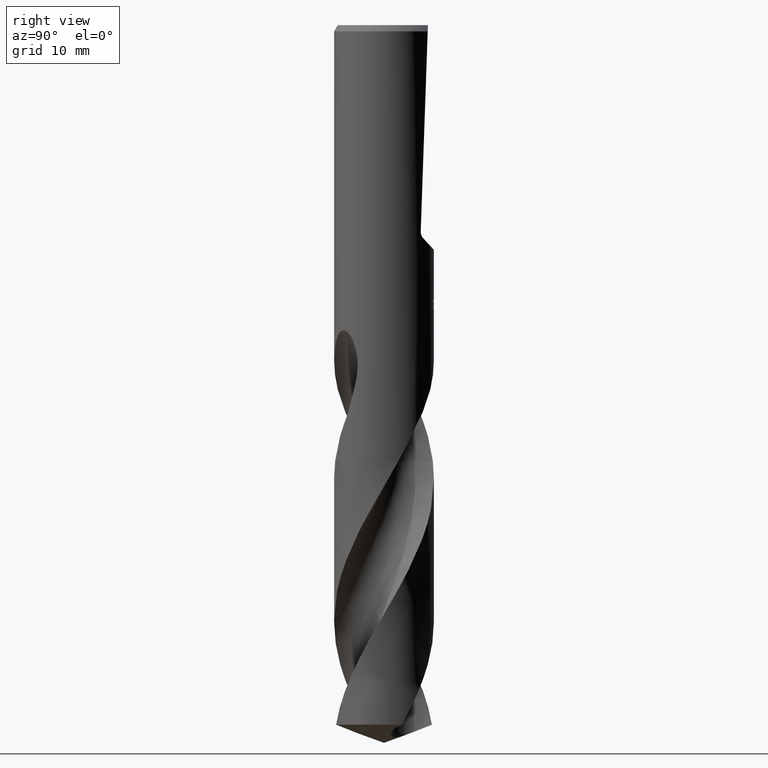
[diagram: clean part render]
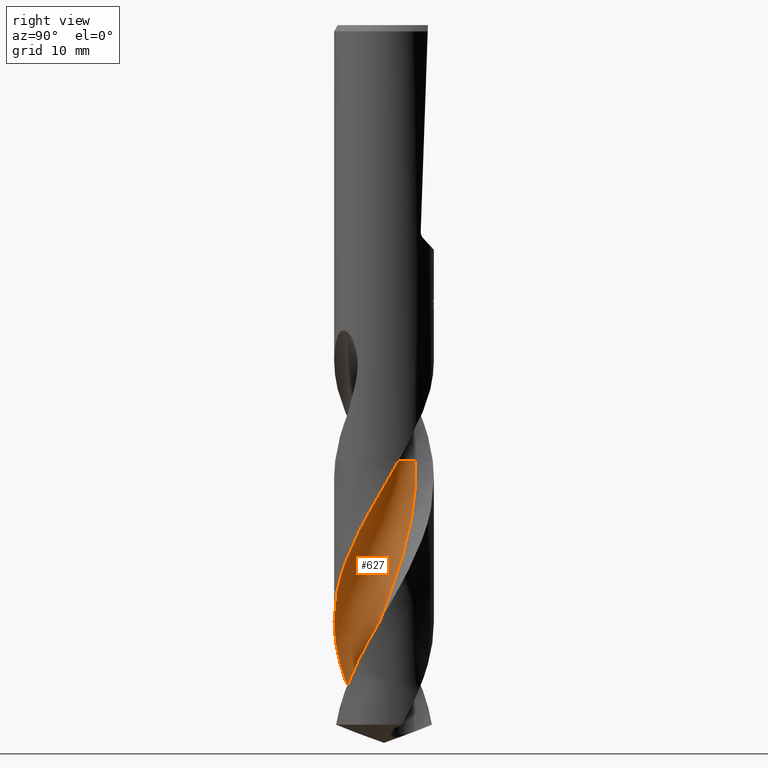
[diagram: same view with one face highlighted and labeled with its STEP entity id]
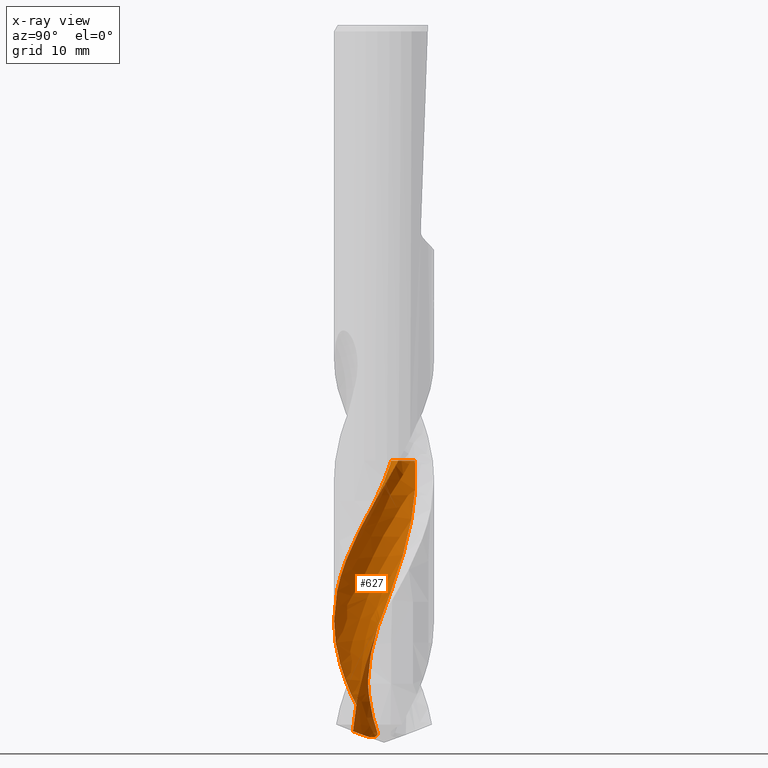
[diagram: x-ray of the same camera — body ghosted, the highlighted face saturated]
A machine part, right view. The second image highlights one B-rep face of the part: STEP entity #627.
The next image is the same camera in x-ray: the body ghosted, the highlighted face saturated — about 0% of this face is hidden behind the body in this view.
In plain terms, the highlighted face is a freeform B-spline surface patch.
Its self-contained STEP definition (entity closure, byte-faithful):
#331=EDGE_CURVE('',#589,#501,#853,.T.);
#335=EDGE_CURVE('',#435,#481,#857,.T.);
#345=EDGE_CURVE('',#607,#435,#868,.T.);
#391=EDGE_CURVE('',#737,#589,#919,.T.);
#435=VERTEX_POINT('',#968);
#481=VERTEX_POINT('',#1018);
#501=VERTEX_POINT('',#1040);
#589=VERTEX_POINT('',#1132);
#607=VERTEX_POINT('',#1154);
#627=ADVANCED_FACE('',(#1175),#1176,.F.);
#639=EDGE_CURVE('',#481,#737,#1188,.T.);
#679=EDGE_CURVE('',#501,#607,#1230,.T.);
#737=VERTEX_POINT('',#1295);
#853=B_SPLINE_CURVE_WITH_KNOTS('',3,(#1998,#1999,#2000,#2001,#2002,#2003,#2004,#2005,#2006,#2007,#2008,#2009,#2010,#2011,#2012,#2013,#2014,#2015,#2016,#2017),.UNSPECIFIED.,.F.,.F.,(4,2,2,2,2,2,2,2,2,4),(0.0,3.10660166933481,5.23401258999662,9.0092338906768,13.5346876422414,18.5787250776118,24.2399292953121,30.5895545735939,35.7181251945758,40.8645523747182),.UNSPECIFIED.);
#857=B_SPLINE_CURVE_WITH_KNOTS('',3,(#2024,#2025,#2026,#2027,#2028,#2029,#2030,#2031,#2032,#2033,#2034,#2035,#2036,#2037,#2038,#2039,#2040,#2041,#2042,#2043),.UNSPECIFIED.,.F.,.F.,(4,2,2,2,2,2,2,2,2,4),(-16.8006218485099,-15.6891768468068,-14.5775007599719,-12.4929966616332,-10.408755172207,-8.32572176035212,-6.24413518085139,-4.16337960795178,-2.08233106861258,-0.0),.UNSPECIFIED.);
#868=B_SPLINE_CURVE_WITH_KNOTS('',3,(#2572,#2573,#2574,#2575,#2576,#2577,#2578,#2579,#2580,#2581,#2582,#2583,#2584,#2585,#2586,#2587,#2588,#2589,#2590,#2591,#2592,#2593,#2594,#2595,#2596,#2597,#2598,#2599,#2600,#2601,#2602,#2603,#2604,#2605,#2606,#2607,#2608,#2609,#2610,#2611,#2612,#2613,#2614,#2615,#2616,#2617,#2618,#2619,#2620,#2621,#2622,#2623,#2624,#2625,#2626,#2627),.UNSPECIFIED.,.F.,.F.,(4,2,2,2,2,2,2,2,2,2,2,2,2,2,2,2,2,2,2,2,2,2,2,2,2,2,2,4),(0.0,4.03119795669945,4.51299357255904,6.34891494524884,7.56997665190257,8.74032055705247,10.6537355196986,12.565384926144,14.4796819760202,16.3922550224049,18.3074110693983,20.2208270257919,22.1368428162549,24.051102981974,25.7679083140063,27.2053389357836,27.3963258987203,30.3747466968977,31.5355284934032,34.7145068317606,35.1598579370838,38.6213664978809,38.9451433668071,41.2884921942798,43.2137067925742,46.1087079763762,47.5535394222418,48.9951844506906),.UNSPECIFIED.);
#919=B_SPLINE_CURVE_WITH_KNOTS('',3,(#3015,#3016,#3017,#3018,#3019,#3020,#3021,#3022,#3023,#3024,#3025,#3026,#3027,#3028,#3029,#3030,#3031,#3032,#3033,#3034),.UNSPECIFIED.,.F.,.F.,(4,2,2,2,2,2,2,2,2,4),(0.0,3.10660166933481,5.23401258999662,9.0092338906768,13.5346876422414,18.5787250776118,24.2399292953121,30.5895545735939,35.7181251945758,40.8645523747182),.UNSPECIFIED.);
#968=CARTESIAN_POINT('',(7.65315511599825,2.32972465532846,-69.805));
#1018=CARTESIAN_POINT('',(-0.841475625402543,4.95653405970587,-69.805));
#1040=CARTESIAN_POINT('',(-7.46189764271834,-2.88445550660683,-112.08823812587));
#1132=CARTESIAN_POINT('',(-4.91052471311144E-012,-3.49123471205399,-113.729294483975));
#1154=CARTESIAN_POINT('',(-1.84829471421194E-011,-7.99996084194976,-95.5289885932846));
#1175=FACE_OUTER_BOUND('',#4758,.T.);
#1176=B_SPLINE_SURFACE_WITH_KNOTS('',3,3,((#4759,#4760,#4761,#4762,#4763,#4764,#4765,#4766,#4767,#4768,#4769,#4770,#4771,#4772,#4773,#4774,#4775,#4776,#4777,#4778,#4779,#4780,#4781,#4782,#4783,#4784,#4785,#4786,#4787,#4788,#4789,#4790,#4791,#4792,#4793,#4794,#4795,#4796,#4797,#4798,#4799,#4800,#4801),(#4802,#4803,#4804,#4805,#4806,#4807,#4808,#4809,#4810,#4811,#4812,#4813,#4814,#4815,#4816,#4817,#4818,#4819,#4820,#4821,#4822,#4823,#4824,#4825,#4826,#4827,#4828,#4829,#4830,#4831,#4832,#4833,#4834,#4835,#4836,#4837,#4838,#4839,#4840,#4841,#4842,#4843,#4844),(#4845,#4846,#4847,#4848,#4849,#4850,#4851,#4852,#4853,#4854,#4855,#4856,#4857,#4858,#4859,#4860,#4861,#4862,#4863,#4864,#4865,#4866,#4867,#4868,#4869,#4870,#4871,#4872,#4873,#4874,#4875,#4876,#4877,#4878,#4879,#4880,#4881,#4882,#4883,#4884,#4885,#4886,#4887),(#4888,#4889,#4890,#4891,#4892,#4893,#4894,#4895,#4896,#4897,#4898,#4899,#4900,#4901,#4902,#4903,#4904,#4905,#4906,#4907,#4908,#4909,#4910,#4911,#4912,#4913,#4914,#4915,#4916,#4917,#4918,#4919,#4920,#4921,#4922,#4923,#4924,#4925,#4926,#4927,#4928,#4929,#4930),(#4931,#4932,#4933,#4934,#4935,#4936,#4937,#4938,#4939,#4940,#4941,#4942,#4943,#4944,#4945,#4946,#4947,#4948,#4949,#4950,#4951,#4952,#4953,#4954,#4955,#4956,#4957,#4958,#4959,#4960,#4961,#4962,#4963,#4964,#4965,#4966,#4967,#4968,#4969,#4970,#4971,#4972,#4973),(#4974,#4975,#4976,#4977,#4978,#4979,#4980,#4981,#4982,#4983,#4984,#4985,#4986,#4987,#4988,#4989,#4990,#4991,#4992,#4993,#4994,#4995,#4996,#4997,#4998,#4999,#5000,#5001,#5002,#5003,#5004,#5005,#5006,#5007,#5008,#5009,#5010,#5011,#5012,#5013,#5014,#5015,#5016),(#5017,#5018,#5019,#5020,#5021,#5022,#5023,#5024,#5025,#5026,#5027,#5028,#5029,#5030,#5031,#5032,#5033,#5034,#5035,#5036,#5037,#5038,#5039,#5040,#5041,#5042,#5043,#5044,#5045,#5046,#5047,#5048,#5049,#5050,#5051,#5052,#5053,#5054,#5055,#5056,#5057,#5058,#5059),(#5060,#5061,#5062,#5063,#5064,#5065,#5066,#5067,#5068,#5069,#5070,#5071,#5072,#5073,#5074,#5075,#5076,#5077,#5078,#5079,#5080,#5081,#5082,#5083,#5084,#5085,#5086,#5087,#5088,#5089,#5090,#5091,#5092,#5093,#5094,#5095,#5096,#5097,#5098,#5099,#5100,#5101,#5102),(#5103,#5104,#5105,#5106,#5107,#5108,#5109,#5110,#5111,#5112,#5113,#5114,#5115,#5116,#5117,#5118,#5119,#5120,#5121,#5122,#5123,#5124,#5125,#5126,#5127,#5128,#5129,#5130,#5131,#5132,#5133,#5134,#5135,#5136,#5137,#5138,#5139,#5140,#5141,#5142,#5143,#5144,#5145),(#5146,#5147,#5148,#5149,#5150,#5151,#5152,#5153,#5154,#5155,#5156,#5157,#5158,#5159,#5160,#5161,#5162,#5163,#5164,#5165,#5166,#5167,#5168,#5169,#5170,#5171,#5172,#5173,#5174,#5175,#5176,#5177,#5178,#5179,#5180,#5181,#5182,#5183,#5184,#5185,#5186,#5187,#5188),(#5189,#5190,#5191,#5192,#5193,#5194,#5195,#5196,#5197,#5198,#5199,#5200,#5201,#5202,#5203,#5204,#5205,#5206,#5207,#5208,#5209,#5210,#5211,#5212,#5213,#5214,#5215,#5216,#5217,#5218,#5219,#5220,#5221,#5222,#5223,#5224,#5225,#5226,#5227,#5228,#5229,#5230,#5231),(#5232,#5233,#5234,#5235,#5236,#5237,#5238,#5239,#5240,#5241,#5242,#5243,#5244,#5245,#5246,#5247,#5248,#5249,#5250,#5251,#5252,#5253,#5254,#5255,#5256,#5257,#5258,#5259,#5260,#5261,#5262,#5263,#5264,#5265,#5266,#5267,#5268,#5269,#5270,#5271,#5272,#5273,#5274)),.UNSPECIFIED.,.F.,.F.,.F.,(4,1,1,1,1,1,1,1,1,4),(4,1,2,2,2,2,2,2,1,2,2,2,2,2,2,2,2,2,2,2,1,2,4),(-8.28795270144725E-017,0.392700612629877,0.785401225259755,1.17810183788963,1.57080245051951,1.96350306314939,2.35620367577927,2.74890428840914,2.94525459472408,3.14160490103902),(0.0,1.06461880689697,2.12923761379393,3.1938564206909,4.25847522758786,6.38771284138179,8.51695045517572,10.6461880689697,12.7754256827636,17.0339009103514,21.2923761379393,25.5508513655272,29.809326593115,34.0678018207029,38.3262770482907,42.5847522758786,46.8432275034665,51.1017027310543,55.3601779586422,59.61865318623,63.8771284138179,66.0063660276118,68.1356036414058),.UNSPECIFIED.);
#1188=B_SPLINE_CURVE_WITH_KNOTS('',3,(#5321,#5322,#5323,#5324,#5325,#5326,#5327,#5328,#5329,#5330,#5331,#5332,#5333,#5334,#5335,#5336,#5337,#5338,#5339,#5340,#5341,#5342,#5343,#5344,#5345,#5346,#5347,#5348,#5349,#5350,#5351,#5352,#5353,#5354,#5355,#5356,#5357,#5358,#5359,#5360,#5361,#5362,#5363),.UNSPECIFIED.,.F.,.F.,(4,1,2,2,2,2,2,2,1,2,2,2,2,2,2,2,2,2,2,2,1,2,4),(0.0,1.06461880689697,2.12923761379393,3.1938564206909,4.25847522758786,6.38771284138179,8.51695045517572,10.6461880689697,12.7754256827636,17.0339009103514,21.2923761379393,25.5508513655272,29.809326593115,34.0678018207029,38.3262770482907,42.5847522758786,46.8432275034665,51.1017027310543,55.3601779586422,59.61865318623,63.8771284138179,66.0063660276118,68.1356036414058),.UNSPECIFIED.);
#1230=B_SPLINE_CURVE_WITH_KNOTS('',3,(#6208,#6209,#6210,#6211,#6212,#6213,#6214,#6215,#6216,#6217,#6218,#6219,#6220,#6221,#6222,#6223,#6224,#6225,#6226,#6227,#6228,#6229,#6230,#6231,#6232,#6233,#6234,#6235,#6236,#6237,#6238,#6239,#6240,#6241,#6242,#6243,#6244,#6245,#6246,#6247,#6248,#6249,#6250,#6251,#6252,#6253,#6254,#6255,#6256,#6257,#6258,#6259,#6260,#6261,#6262,#6263),.UNSPECIFIED.,.F.,.F.,(4,2,2,2,2,2,2,2,2,2,2,2,2,2,2,2,2,2,2,2,2,2,2,2,2,2,2,4),(0.0,4.03119795669945,4.51299357255904,6.34891494524884,7.56997665190257,8.74032055705247,10.6537355196986,12.565384926144,14.4796819760202,16.3922550224049,18.3074110693983,20.2208270257919,22.1368428162549,24.051102981974,25.7679083140063,27.2053389357836,27.3963258987203,30.3747466968977,31.5355284934032,34.7145068317606,35.1598579370838,38.6213664978809,38.9451433668071,41.2884921942798,43.2137067925742,46.1087079763762,47.5535394222418,48.9951844506906),.UNSPECIFIED.);
#1295=CARTESIAN_POINT('',(0.825038306277627,-4.97440358064605,-113.164731597398));
#1998=CARTESIAN_POINT('',(0.825038306277662,-4.97440358064608,-113.164731597397));
#1999=CARTESIAN_POINT('',(0.440626944497056,-4.07694231063672,-113.509871584427));
#2000=CARTESIAN_POINT('',(-0.0746486985126373,-3.32622438483217,-113.80901020564));
#2001=CARTESIAN_POINT('',(-0.91253496896245,-2.37413871410064,-114.086476468191));
#2002=CARTESIAN_POINT('',(-1.20434277084123,-2.11559901321438,-114.120591945678));
#2003=CARTESIAN_POINT('',(-1.85246920763955,-1.60473510227128,-114.128868277285));
#2004=CARTESIAN_POINT('',(-2.23985214635884,-1.39937400932708,-114.043748659915));
#2005=CARTESIAN_POINT('',(-2.99476093472012,-1.10997032831084,-113.843495316419));
#2006=CARTESIAN_POINT('',(-3.44789368439573,-1.01742803554826,-113.692332245756));
#2007=CARTESIAN_POINT('',(-4.47342693781129,-1.01485631325954,-113.331172163292));
#2008=CARTESIAN_POINT('',(-5.00603202690627,-1.12671338614488,-113.132630800216));
#2009=CARTESIAN_POINT('',(-6.06696898776075,-1.5699938745803,-112.719330355811));
#2010=CARTESIAN_POINT('',(-6.57537029545926,-1.92150404091262,-112.508699229573));
#2011=CARTESIAN_POINT('',(-7.49453740160647,-2.85000521359035,-112.083819214458));
#2012=CARTESIAN_POINT('',(-7.87813866452546,-3.44085379402433,-111.875507192723));
#2013=CARTESIAN_POINT('',(-8.36196246965981,-4.61368932377585,-111.526597516189));
#2014=CARTESIAN_POINT('',(-8.50060066920612,-5.17075105449681,-111.382142884531));
#2015=CARTESIAN_POINT('',(-8.61994225635063,-6.31235429461685,-111.11464188788));
#2016=CARTESIAN_POINT('',(-8.59976036843323,-6.89357539839502,-110.992479224835));
#2017=CARTESIAN_POINT('',(-8.50124090999428,-7.46517936758652,-110.882146867205));
#2024=CARTESIAN_POINT('',(9.39233894850022,7.95332282328231,-69.805));
#2025=CARTESIAN_POINT('',(9.49633133630432,7.59773263600544,-69.805));
#2026=CARTESIAN_POINT('',(9.56297128593662,7.23226830406791,-69.805));
#2027=CARTESIAN_POINT('',(9.61942180315498,6.4933741679835,-69.805));
#2028=CARTESIAN_POINT('',(9.60906318138873,6.12194916139148,-69.805));
#2029=CARTESIAN_POINT('',(9.46886348016406,5.06580902083189,-69.805));
#2030=CARTESIAN_POINT('',(9.24373334193173,4.40143939276862,-69.805));
#2031=CARTESIAN_POINT('',(8.55158594253464,3.19647821825825,-69.805));
#2032=CARTESIAN_POINT('',(8.09118955640732,2.6673443296014,-69.8049999999999));
#2033=CARTESIAN_POINT('',(6.9938543347265,1.8155927625739,-69.8049999999999));
#2034=CARTESIAN_POINT('',(6.36746832348659,1.50096779724697,-69.8049999999999));
#2035=CARTESIAN_POINT('',(5.02983355214911,1.12966679582518,-69.8049999999999));
#2036=CARTESIAN_POINT('',(4.3314161568764,1.07635873670161,-69.805));
#2037=CARTESIAN_POINT('',(2.95371535771352,1.24044596582258,-69.805));
#2038=CARTESIAN_POINT('',(2.2876229726052,1.45616302551092,-69.805));
#2039=CARTESIAN_POINT('',(1.07549981824463,2.13086570424722,-69.805));
#2040=CARTESIAN_POINT('',(0.541124224806998,2.58340787365952,-69.805));
#2041=CARTESIAN_POINT('',(-0.324376359980613,3.66823185740127,-69.805));
#2042=CARTESIAN_POINT('',(-0.647065506952312,4.29020539272982,-69.805));
#2043=CARTESIAN_POINT('',(-0.841475625402548,4.95653405970586,-69.805));
#2572=CARTESIAN_POINT('',(-7.46189764271835,-2.88445550660687,-112.08823812587));
#2573=CARTESIAN_POINT('',(-7.21896311327611,-3.51290361214624,-110.925631901164));
#2574=CARTESIAN_POINT('',(-6.89756041767349,-4.10825165133282,-109.776820304439));
#2575=CARTESIAN_POINT('',(-6.45843966180348,-4.72174837793792,-108.475036247845));
#2576=CARTESIAN_POINT('',(-6.4106272746368,-4.7864593899422,-108.336017700302));
#2577=CARTESIAN_POINT('',(-6.17588158542647,-5.09434748666043,-107.667734778212));
#2578=CARTESIAN_POINT('',(-5.9758686957932,-5.32759565897808,-107.13974170298));
#2579=CARTESIAN_POINT('',(-5.62088244810474,-5.69624864215581,-106.259013052689));
#2580=CARTESIAN_POINT('',(-5.47356635495763,-5.83794000683341,-105.907549817054));
#2581=CARTESIAN_POINT('',(-5.17490696924406,-6.10396521238654,-105.218351767182));
#2582=CARTESIAN_POINT('',(-5.02407998200319,-6.22869716733373,-104.880579401974));
#2583=CARTESIAN_POINT('',(-4.61479868893351,-6.54261082121215,-103.991815856934));
#2584=CARTESIAN_POINT('',(-4.3492884190017,-6.72205066937711,-103.44180688368));
#2585=CARTESIAN_POINT('',(-3.79818429179472,-7.04810897214457,-102.339773617794));
#2586=CARTESIAN_POINT('',(-3.51340321163909,-7.19428478591583,-101.788082097773));
#2587=CARTESIAN_POINT('',(-2.92794540731848,-7.45178587873516,-100.685890121854));
#2588=CARTESIAN_POINT('',(-2.62741645617154,-7.56299110116995,-100.135883730239));
#2589=CARTESIAN_POINT('',(-2.01460676321014,-7.74876021042823,-99.033849791934));
#2590=CARTESIAN_POINT('',(-1.70322951871647,-7.82308358033961,-98.482182612155));
#2591=CARTESIAN_POINT('',(-1.07331081907514,-7.93409514450564,-97.3799832816293));
#2592=CARTESIAN_POINT('',(-0.754956628191792,-7.97070053430676,-96.8299768259846));
#2593=CARTESIAN_POINT('',(-0.115558732873478,-8.00552588132122,-95.7279401352671));
#2594=CARTESIAN_POINT('',(0.204551682919267,-8.00372728582303,-95.1762626066886));
#2595=CARTESIAN_POINT('',(0.842776242467274,-7.96187516162146,-94.0740639722023));
#2596=CARTESIAN_POINT('',(1.16069679429522,-7.92178490731386,-93.5240571435262));
#2597=CARTESIAN_POINT('',(1.79002827141536,-7.80368261331796,-92.4220221964171));
#2598=CARTESIAN_POINT('',(2.10052866540554,-7.72587444561522,-91.8703419421667));
#2599=CARTESIAN_POINT('',(2.67864688135564,-7.54361895739684,-90.8257103384052));
#2600=CARTESIAN_POINT('',(2.94729968884395,-7.44277630795612,-90.3328688686846));
#2601=CARTESIAN_POINT('',(3.43013226861351,-7.2312545062369,-89.4257907355171));
#2602=CARTESIAN_POINT('',(3.64547342194256,-7.12510389506154,-89.0129025774395));
#2603=CARTESIAN_POINT('',(3.88340235558245,-6.9942340274282,-88.5442674024619));
#2604=CARTESIAN_POINT('',(3.91121575297922,-6.97871879740076,-88.4892928740754));
#2605=CARTESIAN_POINT('',(4.37197209704564,-6.71806613313954,-87.575924114136));
#2606=CARTESIAN_POINT('',(4.78136372892087,-6.43316417806887,-86.7229740002757));
#2607=CARTESIAN_POINT('',(5.31010157765993,-5.98660881944424,-85.5308163594203));
#2608=CARTESIAN_POINT('',(5.45366466992596,-5.8561173576084,-85.1960013435916));
#2609=CARTESIAN_POINT('',(5.97196654338791,-5.34943515425685,-83.9464428074175));
#2610=CARTESIAN_POINT('',(6.31361820824714,-4.94153149262991,-83.0375676395404));
#2611=CARTESIAN_POINT('',(6.65415707273,-4.44146167724059,-81.9940392193804));
#2612=CARTESIAN_POINT('',(6.69511617569639,-4.37947520475209,-81.8657738555198));
#2613=CARTESIAN_POINT('',(7.0470473267023,-3.83038465697524,-80.7408338809826));
#2614=CARTESIAN_POINT('',(7.30513525576559,-3.31170089265017,-79.7524044644776));
#2615=CARTESIAN_POINT('',(7.52381288485691,-2.71917148651238,-78.6625924130212));
#2616=CARTESIAN_POINT('',(7.54199223323139,-2.66833393353217,-78.5693709338192));
#2617=CARTESIAN_POINT('',(7.68764603005936,-2.24762331423565,-77.8012325547755));
#2618=CARTESIAN_POINT('',(7.78845038706417,-1.86877161497749,-77.1290757259363));
#2619=CARTESIAN_POINT('',(7.9208438886568,-1.16727511479305,-75.9006664868599));
#2620=CARTESIAN_POINT('',(7.96135667319758,-0.847789000554807,-75.3458916024002));
#2621=CARTESIAN_POINT('',(8.01437612722171,-0.0446888823652828,-73.9586902724919));
#2622=CARTESIAN_POINT('',(8.00245193275609,0.439758139599084,-73.129133058704));
#2623=CARTESIAN_POINT('',(7.91900280522196,1.16025093156039,-71.8809206385061));
#2624=CARTESIAN_POINT('',(7.88040990826046,1.39839590853564,-71.4658531897758));
#2625=CARTESIAN_POINT('',(7.7822152164733,1.86901342531576,-70.6348769778504));
#2626=CARTESIAN_POINT('',(7.72293499597446,2.10052396436318,-70.2188410211619));
#2627=CARTESIAN_POINT('',(7.65308960804268,2.32993983521996,-69.8046114754608));
#3015=CARTESIAN_POINT('',(0.825038306277662,-4.97440358064608,-113.164731597397));
#3016=CARTESIAN_POINT('',(0.440626944497056,-4.07694231063672,-113.509871584427));
#3017=CARTESIAN_POINT('',(-0.0746486985126373,-3.32622438483217,-113.80901020564));
#3018=CARTESIAN_POINT('',(-0.91253496896245,-2.37413871410064,-114.086476468191));
#3019=CARTESIAN_POINT('',(-1.20434277084123,-2.11559901321438,-114.120591945678));
#3020=CARTESIAN_POINT('',(-1.85246920763955,-1.60473510227128,-114.128868277285));
#3021=CARTESIAN_POINT('',(-2.23985214635884,-1.39937400932708,-114.043748659915));
#3022=CARTESIAN_POINT('',(-2.99476093472012,-1.10997032831084,-113.843495316419));
#3023=CARTESIAN_POINT('',(-3.44789368439573,-1.01742803554826,-113.692332245756));
#3024=CARTESIAN_POINT('',(-4.47342693781129,-1.01485631325954,-113.331172163292));
#3025=CARTESIAN_POINT('',(-5.00603202690627,-1.12671338614488,-113.132630800216));
#3026=CARTESIAN_POINT('',(-6.06696898776075,-1.5699938745803,-112.719330355811));
#3027=CARTESIAN_POINT('',(-6.57537029545926,-1.92150404091262,-112.508699229573));
#3028=CARTESIAN_POINT('',(-7.49453740160647,-2.85000521359035,-112.083819214458));
#3029=CARTESIAN_POINT('',(-7.87813866452546,-3.44085379402433,-111.875507192723));
#3030=CARTESIAN_POINT('',(-8.36196246965981,-4.61368932377585,-111.526597516189));
#3031=CARTESIAN_POINT('',(-8.50060066920612,-5.17075105449681,-111.382142884531));
#3032=CARTESIAN_POINT('',(-8.61994225635063,-6.31235429461685,-111.11464188788));
#3033=CARTESIAN_POINT('',(-8.59976036843323,-6.89357539839502,-110.992479224835));
#3034=CARTESIAN_POINT('',(-8.50124090999428,-7.46517936758652,-110.882146867205));
#4758=EDGE_LOOP('',(#7940,#7941,#7942,#7943,#7944,#7945));
#4759=CARTESIAN_POINT('',(3.77123616390052,11.5045694939005,-62.101));
#4760=CARTESIAN_POINT('',(3.99494750786871,11.491550967877,-62.3761964294817));
#4761=CARTESIAN_POINT('',(4.44535716074062,11.4368890825476,-62.928708894119));
#4762=CARTESIAN_POINT('',(4.89746910289602,11.3144343687984,-63.4836356023279));
#4763=CARTESIAN_POINT('',(5.3463058039127,11.1523663599811,-64.0378960476902));
#4764=CARTESIAN_POINT('',(5.5691709377011,11.0495228777207,-64.3146059860287));
#4765=CARTESIAN_POINT('',(6.00534785201262,10.7952059434669,-64.8646200871224));
#4766=CARTESIAN_POINT('',(6.21895591243397,10.6599028421596,-65.1391112000673));
#4767=CARTESIAN_POINT('',(6.84495326534287,10.2302383777823,-65.9608312941883));
#4768=CARTESIAN_POINT('',(7.24490090355261,9.93366322254029,-66.5088962825313));
#4769=CARTESIAN_POINT('',(8.017782623465,9.32995362118867,-67.6126019443398));
#4770=CARTESIAN_POINT('',(8.38670653037693,9.00639853815631,-68.1647858744946));
#4771=CARTESIAN_POINT('',(9.08347870649519,8.31819325422223,-69.2698218861797));
#4772=CARTESIAN_POINT('',(9.41004161470983,7.95002214398554,-69.8215558486082));
#4773=CARTESIAN_POINT('',(10.0116248688456,7.16804894421748,-70.9219077035381));
#4774=CARTESIAN_POINT('',(10.8464192765121,5.94583325632293,-72.5738213763963));
#4775=CARTESIAN_POINT('',(11.4574494267158,4.59224251369927,-74.2286793966339));
#4776=CARTESIAN_POINT('',(12.0394976566691,2.7109191361218,-76.4328668057407));
#4777=CARTESIAN_POINT('',(12.2207461411156,1.73766549243578,-77.535053441979));
#4778=CARTESIAN_POINT('',(12.3388106957972,-0.228344356696731,-79.7395554585927));
#4779=CARTESIAN_POINT('',(12.283393278689,-1.21676873646031,-80.8417797230621));
#4780=CARTESIAN_POINT('',(11.9309413234659,-3.1544257264903,-83.0462084387753));
#4781=CARTESIAN_POINT('',(11.642262637585,-4.10137097098775,-84.1484298127377));
#4782=CARTESIAN_POINT('',(10.839371113673,-5.89975404537362,-86.352880347802));
#4783=CARTESIAN_POINT('',(10.3338892238225,-6.75095033797079,-87.4551037160809));
#4784=CARTESIAN_POINT('',(9.12656642906275,-8.30697365282369,-89.6595442821493));
#4785=CARTESIAN_POINT('',(8.43324330614743,-9.01363821266433,-90.7617686793985));
#4786=CARTESIAN_POINT('',(6.89061118369361,-10.238074514454,-92.9662124436669));
#4787=CARTESIAN_POINT('',(6.0491856981925,-10.7596777119956,-94.0684331341183));
#4788=CARTESIAN_POINT('',(4.25977635161187,-11.58239695737,-96.2728857838334));
#4789=CARTESIAN_POINT('',(3.31850911215086,-11.889082908257,-97.3751072697632));
#4790=CARTESIAN_POINT('',(1.3848678660048,-12.2629852705756,-99.5795416535595));
#4791=CARTESIAN_POINT('',(0.397677830986936,-12.3371882956942,-100.681766656477));
#4792=CARTESIAN_POINT('',(-1.56943527325388,-12.2407419123529,-102.886229384219));
#4793=CARTESIAN_POINT('',(-2.54595380209566,-12.0781678511329,-103.988435202591));
#4794=CARTESIAN_POINT('',(-4.4338307162187,-11.5171237408412,-106.19285235389));
#4795=CARTESIAN_POINT('',(-5.34386265749228,-11.1270478568185,-107.295173965047));
#4796=CARTESIAN_POINT('',(-7.04395423935923,-10.1322684722062,-109.499751199625));
#4797=CARTESIAN_POINT('',(-8.23044920533452,-9.24056158959566,-111.152496528053));
#4798=CARTESIAN_POINT('',(-9.23026200083425,-8.14993077033565,-112.804947176397));
#4799=CARTESIAN_POINT('',(-9.84785716001524,-7.38111209319054,-113.906703194994));
#4800=CARTESIAN_POINT('',(-10.1365876112376,-6.98504520097409,-114.457006773655));
#4801=CARTESIAN_POINT('',(-10.4065851501006,-6.57998542295477,-115.007939303796));
#4802=CARTESIAN_POINT('',(4.26487008743984,11.0108922508249,-62.1010000000006));
#4803=CARTESIAN_POINT('',(4.48854231835134,10.9978346199963,-62.3761954207119));
#4804=CARTESIAN_POINT('',(4.93515689673654,10.9393357322616,-62.9289116032268));
#4805=CARTESIAN_POINT('',(5.37574073142824,10.8057473806653,-63.4843196492008));
#4806=CARTESIAN_POINT('',(5.80873311276064,10.6292350520419,-64.0389998213953));
#4807=CARTESIAN_POINT('',(6.02124614083542,10.5172626016379,-64.3158766959041));
#4808=CARTESIAN_POINT('',(6.43126905357798,10.241794415554,-64.8657432318517));
#4809=CARTESIAN_POINT('',(6.63138275129101,10.0963596056384,-65.1400848036073));
#4810=CARTESIAN_POINT('',(7.21572318877099,9.63773063552185,-65.9611148431503));
#4811=CARTESIAN_POINT('',(7.58964488044599,9.32599131797155,-66.5087577239503));
#4812=CARTESIAN_POINT('',(8.31480685583063,8.69758510550082,-67.6126704374082));
#4813=CARTESIAN_POINT('',(8.65924812983008,8.36309760201334,-68.1650031065412));
#4814=CARTESIAN_POINT('',(9.30572358860413,7.65583254206082,-69.2704298857184));
#4815=CARTESIAN_POINT('',(9.60582261017986,7.27929372060111,-69.8222504755228));
#4816=CARTESIAN_POINT('',(10.1519714076767,6.48357122519126,-70.9223424349183));
#4817=CARTESIAN_POINT('',(10.9037073370366,5.24614401277468,-72.5740586767563));
#4818=CARTESIAN_POINT('',(11.431144788699,3.89235183760404,-74.2291285667418));
#4819=CARTESIAN_POINT('',(11.9017698552076,2.02420990670028,-76.4332801964786));
#4820=CARTESIAN_POINT('',(12.0288851564687,1.0640697706056,-77.5354618453482));
#4821=CARTESIAN_POINT('',(12.0418031205823,-0.862637595824631,-79.7399717835936));
#4822=CARTESIAN_POINT('',(11.9369073207828,-1.8254454841165,-80.8421962906035));
#4823=CARTESIAN_POINT('',(11.4916924638396,-3.6999529423217,-83.0466227618544));
#4824=CARTESIAN_POINT('',(11.1610477118437,-4.61026434233242,-84.1488440304038));
#4825=CARTESIAN_POINT('',(10.2830552242972,-6.32525663050882,-86.3532952256041));
#4826=CARTESIAN_POINT('',(9.74551461043097,-7.13089208264973,-87.455518729441));
#4827=CARTESIAN_POINT('',(8.48506110156758,-8.58806241131963,-89.6599587674007));
#4828=CARTESIAN_POINT('',(7.77142499913324,-9.2428491797968,-90.7621833708468));
#4829=CARTESIAN_POINT('',(6.20067755335858,-10.3586244591,-92.9666270030881));
#4830=CARTESIAN_POINT('',(5.35185330009951,-10.825007809299,-94.0688474546036));
#4831=CARTESIAN_POINT('',(3.56096194824877,-11.5355087574434,-96.2733011605363));
#4832=CARTESIAN_POINT('',(2.62563186733734,-11.7868033733609,-97.3755221092021));
#4833=CARTESIAN_POINT('',(0.717219648479872,-12.0513596240753,-99.5799554367808));
#4834=CARTESIAN_POINT('',(-0.251039858617055,-12.0731692550687,-100.682181273772));
#4835=CARTESIAN_POINT('',(-2.16765289062571,-11.8764948223027,-102.886646906112));
#4836=CARTESIAN_POINT('',(-3.11332836741053,-11.6675277692204,-103.988850512202));
#4837=CARTESIAN_POINT('',(-4.92834939084931,-11.0211499275026,-106.193258685651));
#4838=CARTESIAN_POINT('',(-5.79738767543361,-10.5933213296185,-107.295588792645));
#4839=CARTESIAN_POINT('',(-7.40627998666433,-9.53287828531011,-109.500187415629));
#4840=CARTESIAN_POINT('',(-8.51978926277477,-8.60094068560614,-111.152863323039));
#4841=CARTESIAN_POINT('',(-9.43960811478686,-7.48331432325579,-112.80536000018));
#4842=CARTESIAN_POINT('',(-10.0021899840828,-6.69965451856844,-113.907153646528));
#4843=CARTESIAN_POINT('',(-10.264392218146,-6.29822642955343,-114.45739117295));
#4844=CARTESIAN_POINT('',(-10.508926364945,-5.88939308323753,-115.008347798055));
#4845=CARTESIAN_POINT('',(5.05561280735149,9.82744572309669,-62.1009999999994));
#4846=CARTESIAN_POINT('',(5.27919128993261,9.81432544384477,-62.3761937643355));
#4847=CARTESIAN_POINT('',(5.71669144793464,9.74966336545687,-62.9292449912033));
#4848=CARTESIAN_POINT('',(6.12979663965816,9.59839653589858,-63.4854446881572));
#4849=CARTESIAN_POINT('',(6.52536330382369,9.39930202253191,-64.0408151689402));
#4850=CARTESIAN_POINT('',(6.71354635511126,9.27319194905881,-64.3179665992792));
#4851=CARTESIAN_POINT('',(7.06286104051042,8.96583076855858,-64.8675904449036));
#4852=CARTESIAN_POINT('',(7.23196261613471,8.80550316457658,-65.1416860684445));
#4853=CARTESIAN_POINT('',(7.72148835253499,8.30552329039235,-65.9615811855309));
#4854=CARTESIAN_POINT('',(8.03733895903119,7.97381155012014,-66.508529845011));
#4855=CARTESIAN_POINT('',(8.65726060393128,7.31499882649334,-67.6127830812404));
#4856=CARTESIAN_POINT('',(8.94839951802824,6.9683869510327,-68.1653603795497));
#4857=CARTESIAN_POINT('',(9.48672338452412,6.24301136698542,-69.2714298517056));
#4858=CARTESIAN_POINT('',(9.73057826520974,5.86026425621758,-69.8233929341162));
#4859=CARTESIAN_POINT('',(10.16041385375,5.05909339255951,-70.9230574053875));
#4860=CARTESIAN_POINT('',(10.7400187919576,3.82427884771883,-72.5744489702713));
#4861=CARTESIAN_POINT('',(11.1002258166419,2.50332553592266,-74.229867349514));
#4862=CARTESIAN_POINT('',(11.3532934240459,0.705849895967843,-76.4339600472599));
#4863=CARTESIAN_POINT('',(11.3773797302126,-0.206542005162141,-77.5361335111407));
#4864=CARTESIAN_POINT('',(11.1956781252823,-2.01284803842277,-79.740656529168));
#4865=CARTESIAN_POINT('',(11.0020329484779,-2.90475800272644,-80.842881457682));
#4866=CARTESIAN_POINT('',(10.3964437515919,-4.61610461193519,-83.0473041410543));
#4867=CARTESIAN_POINT('',(9.99645236614701,-5.43647533241376,-84.1495251161461));
#4868=CARTESIAN_POINT('',(9.00145104609559,-6.95485639811893,-86.353977733686));
#4869=CARTESIAN_POINT('',(8.41792431961718,-7.65664071198724,-87.4562014370822));
#4870=CARTESIAN_POINT('',(7.09054195942304,-8.8950185953273,-89.6606403166551));
#4871=CARTESIAN_POINT('',(6.35691831942105,-9.43799386201692,-90.7628653687835));
#4872=CARTESIAN_POINT('',(4.77316254989922,-10.3253124826218,-92.9673088545749));
#4873=CARTESIAN_POINT('',(3.93150273552848,-10.6783372541697,-94.069529203132));
#4874=CARTESIAN_POINT('',(2.18227313524488,-11.163859302301,-96.2739839955362));
#4875=CARTESIAN_POINT('',(1.28084193827486,-11.3067555638843,-97.3762045461284));
#4876=CARTESIAN_POINT('',(-0.533639957201202,-11.3626985014925,-99.5806358160454));
#4877=CARTESIAN_POINT('',(-1.44321146972111,-11.287271239841,-100.682863038072));
#4878=CARTESIAN_POINT('',(-3.21898859133957,-10.9102649879961,-102.887333741593));
#4879=CARTESIAN_POINT('',(-4.08454224759721,-10.6207966586755,-103.989533682625));
#4880=CARTESIAN_POINT('',(-5.71994797258535,-9.8327592672446,-106.193926849498));
#4881=CARTESIAN_POINT('',(-6.49200340649743,-9.34574278357492,-107.296271091563));
#4882=CARTESIAN_POINT('',(-7.89242356911374,-8.19026679647842,-109.50090480816));
#4883=CARTESIAN_POINT('',(-8.84399385339957,-7.20690837163384,-111.153466490332));
#4884=CARTESIAN_POINT('',(-9.59312350460926,-6.0671128844067,-112.806039064009));
#4885=CARTESIAN_POINT('',(-10.0398000653775,-5.27565385707402,-113.907894391334));
#4886=CARTESIAN_POINT('',(-10.2468250932861,-4.87405490136193,-114.45802311849));
#4887=CARTESIAN_POINT('',(-10.4389426228881,-4.46780187703144,-115.00901963899));
#4888=CARTESIAN_POINT('',(5.47216991103902,7.73334034922096,-62.1009999999997));
#4889=CARTESIAN_POINT('',(5.69558248941374,7.720187073969,-62.3761927298582));
#4890=CARTESIAN_POINT('',(6.11691262017117,7.65221541762487,-62.9294531104426));
#4891=CARTESIAN_POINT('',(6.48178643473874,7.49222107906944,-63.4861470031429));
#4892=CARTESIAN_POINT('',(6.81252099398969,7.28331267053013,-64.0419484108001));
#4893=CARTESIAN_POINT('',(6.95886900585907,7.15157495376895,-64.3192712380578));
#4894=CARTESIAN_POINT('',(7.20573749419089,6.83486220153539,-64.8687435785989));
#4895=CARTESIAN_POINT('',(7.32330867972197,6.6716971175924,-65.1426856688988));
#4896=CARTESIAN_POINT('',(7.65768897573489,6.16883733491747,-65.9618723036691));
#4897=CARTESIAN_POINT('',(7.881591864147,5.84278081989119,-66.5083875921569));
#4898=CARTESIAN_POINT('',(8.33820251615733,5.20224014353903,-67.6128533977741));
#4899=CARTESIAN_POINT('',(8.54850790040808,4.86942298079694,-68.165583410485));
#4900=CARTESIAN_POINT('',(8.92654467484325,4.18103159824965,-69.2720540867105));
#4901=CARTESIAN_POINT('',(9.08888507251999,3.82196708570385,-69.8241061084403));
#4902=CARTESIAN_POINT('',(9.35439048900333,3.08001530366039,-70.9235037441463));
#4903=CARTESIAN_POINT('',(9.6969330668774,1.9476340817816,-72.5746926072225));
#4904=CARTESIAN_POINT('',(9.84422114674734,0.768191952356239,-74.2303285121263));
#4905=CARTESIAN_POINT('',(9.83633455120236,-0.806455658687112,-76.4343844765676));
#4906=CARTESIAN_POINT('',(9.74503961847173,-1.59352769223453,-77.5365528150115));
#4907=CARTESIAN_POINT('',(9.3627246558964,-3.12124373096278,-79.7410839745848));
#4908=CARTESIAN_POINT('',(9.08677797379137,-3.86394718352012,-80.8433090808055));
#4909=CARTESIAN_POINT('',(8.35258321606786,-5.25710048267447,-83.0477295940035));
#4910=CARTESIAN_POINT('',(7.90811268579218,-5.91301091967752,-84.1499503473538));
#4911=CARTESIAN_POINT('',(6.86380992164523,-7.0917326324984,-86.3544037354714));
#4912=CARTESIAN_POINT('',(6.27616543181675,-7.62318783748827,-87.4566275655627));
#4913=CARTESIAN_POINT('',(4.98162231065278,-8.51991326892983,-89.6610658350781));
#4914=CARTESIAN_POINT('',(4.28448285405419,-8.89645137858474,-90.7632910918336));
#4915=CARTESIAN_POINT('',(2.81384439150664,-9.45967674615702,-92.967734524068));
#4916=CARTESIAN_POINT('',(2.04718773896395,-9.65970672192833,-94.0699545105951));
#4917=CARTESIAN_POINT('',(0.484848003879063,-9.85733919846842,-96.274410538849));
#4918=CARTESIAN_POINT('',(-0.307375271562407,-9.86946218126459,-97.3766306404135));
#4919=CARTESIAN_POINT('',(-1.87192114505961,-9.69020170556228,-99.5810604693298));
#4920=CARTESIAN_POINT('',(-2.6443359429739,-9.51370058911974,-100.683288648927));
#4921=CARTESIAN_POINT('',(-4.12140412312529,-8.96761346191311,-102.88776248872));
#4922=CARTESIAN_POINT('',(-4.82970224090086,-8.61256975161349,-103.989960074486));
#4923=CARTESIAN_POINT('',(-6.13485332228141,-7.73131024566444,-106.194344037494));
#4924=CARTESIAN_POINT('',(-6.73852000449519,-7.21793642112235,-107.296696998399));
#4925=CARTESIAN_POINT('',(-7.7954577706573,-6.05042481997509,-109.50135266849));
#4926=CARTESIAN_POINT('',(-8.49307317285198,-5.08876198494511,-111.153843070702));
#4927=CARTESIAN_POINT('',(-8.99291263861119,-4.01622601579533,-112.806462919615));
#4928=CARTESIAN_POINT('',(-9.27447508798909,-3.28049331803776,-113.908356861201));
#4929=CARTESIAN_POINT('',(-9.4049300475653,-2.91033225396486,-114.458417738626));
#4930=CARTESIAN_POINT('',(-9.52588284385044,-2.53774519352797,-115.009439040383));
#4931=CARTESIAN_POINT('',(5.05563585511007,5.63923039084382,-62.1010000000003));
#4932=CARTESIAN_POINT('',(5.2788825321545,5.6261101125942,-62.376193306629));
#4933=CARTESIAN_POINT('',(5.6840068997026,5.56126887300239,-62.9293375350973));
#4934=CARTESIAN_POINT('',(6.0009815639122,5.41166855444233,-63.4857569861843));
#4935=CARTESIAN_POINT('',(6.26806453301341,5.21850312260653,-64.0413190895198));
#4936=CARTESIAN_POINT('',(6.37360900407195,5.09757549284462,-64.3185467346714));
#4937=CARTESIAN_POINT('',(6.52225036939217,4.81142773706141,-64.868103209265));
#4938=CARTESIAN_POINT('',(6.59112734437131,4.66536127617716,-65.1421305627189));
#4939=CARTESIAN_POINT('',(6.78106854434179,4.21921325724471,-65.9617106350806));
#4940=CARTESIAN_POINT('',(6.92218724149529,3.93356843060505,-66.5084665934615));
#4941=CARTESIAN_POINT('',(7.23491072854146,3.37240558640245,-67.6128143448076));
#4942=CARTESIAN_POINT('',(7.37581475307147,3.08326683164918,-68.1654595654706));
#4943=CARTESIAN_POINT('',(7.61991932339225,2.49038345174269,-69.2717074202468));
#4944=CARTESIAN_POINT('',(7.71601328259978,2.18439297315113,-69.823710062256));
#4945=CARTESIAN_POINT('',(7.85235942748305,1.56003945932403,-70.9232558789063));
#4946=CARTESIAN_POINT('',(8.01508466291266,0.613014517394633,-72.5745573111376));
#4947=CARTESIAN_POINT('',(8.01981566212182,-0.354207771262958,-74.2300724058766));
#4948=CARTESIAN_POINT('',(7.85611184604483,-1.62312598169696,-76.4341487878011));
#4949=CARTESIAN_POINT('',(7.70617660519438,-2.25026296793564,-77.5363199743702));
#4950=CARTESIAN_POINT('',(7.2451313049292,-3.44382394124988,-79.7408465906621));
#4951=CARTESIAN_POINT('',(6.950247015673,-4.01718309291629,-80.8430716019676));
#4952=CARTESIAN_POINT('',(6.21900407234904,-5.06714885673212,-83.0474933348265));
#4953=CARTESIAN_POINT('',(5.79637659126129,-5.55409639990321,-84.1497141894563));
#4954=CARTESIAN_POINT('',(4.8365077293339,-6.40014708720533,-86.3541671788706));
#4955=CARTESIAN_POINT('',(4.3102412788435,-6.7726629832598,-87.4563909717199));
#4956=CARTESIAN_POINT('',(3.17678279378308,-7.36630996543085,-89.6608294845622));
#4957=CARTESIAN_POINT('',(2.57704328011157,-7.60304219754526,-90.7630546901335));
#4958=CARTESIAN_POINT('',(1.33493706955433,-7.91013292273664,-92.9674981226704));
#4959=CARTESIAN_POINT('',(0.696123018668322,-7.99751677488921,-94.0697181856972));
#4960=CARTESIAN_POINT('',(-0.583382115172707,-8.00069399639422,-96.2741738061705));
#4961=CARTESIAN_POINT('',(-1.22466558523442,-7.93379050749687,-97.376394120363));
#4962=CARTESIAN_POINT('',(-2.46829201155278,-7.63287724127147,-99.5808245444597));
#4963=CARTESIAN_POINT('',(-3.0753111870488,-7.41548390341079,-100.683052133477));
#4964=CARTESIAN_POINT('',(-4.21170381023177,-6.82749783748949,-102.887524554258));
#4965=CARTESIAN_POINT('',(-4.74962214703327,-6.47204969330825,-103.989723205984));
#4966=CARTESIAN_POINT('',(-5.71398315507311,-5.63104769145723,-106.194112441499));
#4967=CARTESIAN_POINT('',(-6.15199250613753,-5.15776269377575,-107.296460443222));
#4968=CARTESIAN_POINT('',(-6.8869882394247,-4.11057702285981,-109.501103995274));
#4969=CARTESIAN_POINT('',(-7.35828257529289,-3.26614306309095,-111.153633983081));
#4970=CARTESIAN_POINT('',(-7.65354731610607,-2.35114621740613,-112.806227492615));
#4971=CARTESIAN_POINT('',(-7.80388993964863,-1.73008455957429,-113.908100085822));
#4972=CARTESIAN_POINT('',(-7.87563416786647,-1.41827053087743,-114.458198631358));
#4973=CARTESIAN_POINT('',(-7.94372283733779,-1.10402039529653,-115.009206134556));
#4974=CARTESIAN_POINT('',(3.8694246617525,3.8639275597005,-62.1010000000004));
#4975=CARTESIAN_POINT('',(4.09253069571978,3.85090124779878,-62.3761953993129));
#4976=CARTESIAN_POINT('',(4.4838807637547,3.79515384182052,-62.9289158622476));
#4977=CARTESIAN_POINT('',(4.76058077872572,3.67348665504453,-63.4843340185136));
#4978=CARTESIAN_POINT('',(4.97488311441738,3.51922434070778,-64.0390230100672));
#4979=CARTESIAN_POINT('',(5.04686756659254,3.42389876401685,-64.3159033893159));
#4980=CARTESIAN_POINT('',(5.11645518469141,3.2035793081539,-64.8657668278015));
#4981=CARTESIAN_POINT('',(5.14688744254168,3.09194442897722,-65.1401052579421));
#4982=CARTESIAN_POINT('',(5.22508559265443,2.75346594745419,-65.9611207975196));
#4983=CARTESIAN_POINT('',(5.30518688212456,2.53683687781265,-66.5087548122764));
#4984=CARTESIAN_POINT('',(5.51535269701628,2.10407304372067,-67.6126718771668));
#4985=CARTESIAN_POINT('',(5.60885337384102,1.88184666703406,-68.1650076726776));
#4986=CARTESIAN_POINT('',(5.76577070379111,1.42845477459251,-69.2704426557921));
#4987=CARTESIAN_POINT('',(5.82097176826464,1.19684965939404,-69.8222650724927));
#4988=CARTESIAN_POINT('',(5.8829930630398,0.730570176181075,-70.9223515631627));
#4989=CARTESIAN_POINT('',(5.95052169639481,0.023605456442682,-72.5740636595231));
#4990=CARTESIAN_POINT('',(5.90476072573312,-0.692997135215384,-74.229138030051));
#4991=CARTESIAN_POINT('',(5.71409855644131,-1.61982946382734,-76.4332888535825));
#4992=CARTESIAN_POINT('',(5.57119147604724,-2.0767650746988,-77.5354704555276));
#4993=CARTESIAN_POINT('',(5.16528496002562,-2.93147837412841,-79.7399804990546));
#4994=CARTESIAN_POINT('',(4.91771009318755,-3.34113674362081,-80.8422050863545));
#4995=CARTESIAN_POINT('',(4.32052685913269,-4.07516839943252,-83.0466314211957));
#4996=CARTESIAN_POINT('',(3.98273924602613,-4.4143736563635,-84.1488526891415));
#4997=CARTESIAN_POINT('',(3.22818521421215,-4.9853882219595,-86.353303984243));
#4998=CARTESIAN_POINT('',(2.8194482666772,-5.23455183963153,-87.4555274868494));
#4999=CARTESIAN_POINT('',(1.9507960078163,-5.60983568732813,-89.659967435851));
#5000=CARTESIAN_POINT('',(1.49454380617006,-5.75467768215783,-90.7621920599642));
#5001=CARTESIAN_POINT('',(0.561592539588652,-5.9125868037544,-92.9666357346178));
#5002=CARTESIAN_POINT('',(0.0839974977577666,-5.94482273318765,-94.0688563286342));
#5003=CARTESIAN_POINT('',(-0.859787601941341,-5.87658325218955,-96.2733097165498));
#5004=CARTESIAN_POINT('',(-1.33137879543897,-5.79443129984317,-97.3755308735889));
#5005=CARTESIAN_POINT('',(-2.23195979707233,-5.50393649547603,-99.5799640798344));
#5006=CARTESIAN_POINT('',(-2.67052467433979,-5.31205808381762,-100.682189864961));
#5007=CARTESIAN_POINT('',(-3.47614018656903,-4.81573385342821,-102.886655796247));
#5008=CARTESIAN_POINT('',(-3.85649350109197,-4.52511384696848,-103.98885921445));
#5009=CARTESIAN_POINT('',(-4.52141165895905,-3.85171992042386,-106.193267244192));
#5010=CARTESIAN_POINT('',(-4.8217150541027,-3.47886669149017,-107.295597521658));
#5011=CARTESIAN_POINT('',(-5.30532233003243,-2.6660500189218,-109.500196565085));
#5012=CARTESIAN_POINT('',(-5.61238497226856,-2.01653089246412,-111.152871033222));
#5013=CARTESIAN_POINT('',(-5.7789353253042,-1.32536877894721,-112.805368671599));
#5014=CARTESIAN_POINT('',(-5.85192961155916,-0.86046504396746,-113.907163110533));
#5015=CARTESIAN_POINT('',(-5.89176068871073,-0.62502437671511,-114.457399152571));
#5016=CARTESIAN_POINT('',(-5.93333397588068,-0.384900766054461,-115.008356379588));
#5017=CARTESIAN_POINT('',(2.09412762204004,2.67770769883472,-62.101));
#5018=CARTESIAN_POINT('',(2.31713968411079,2.66482203518478,-62.3761986981667));
#5019=CARTESIAN_POINT('',(2.69924394241998,2.62274738651999,-62.9282522817917));
#5020=CARTESIAN_POINT('',(2.94942530906024,2.5422998580631,-63.4820947398042));
#5021=CARTESIAN_POINT('',(3.12985340053559,2.4441781034809,-64.0354097283383));
#5022=CARTESIAN_POINT('',(3.18063060433771,2.38534883800256,-64.3117436325504));
#5023=CARTESIAN_POINT('',(3.20237316118535,2.25609914730678,-64.8620901277511));
#5024=CARTESIAN_POINT('',(3.2104631001815,2.1909868686203,-65.1369180925544));
#5025=CARTESIAN_POINT('',(3.22662624181968,1.99474386969886,-65.9601925864585));
#5026=CARTESIAN_POINT('',(3.27676630293453,1.86522756787953,-66.509208393395));
#5027=CARTESIAN_POINT('',(3.44131758325458,1.59033608152219,-67.6124476605935));
#5028=CARTESIAN_POINT('',(3.51662968495088,1.44806921945175,-68.1642965440098));
#5029=CARTESIAN_POINT('',(3.64637830863645,1.15691583016236,-69.2684523289656));
#5030=CARTESIAN_POINT('',(3.69226565693331,1.00968283714787,-69.8199911311561));
#5031=CARTESIAN_POINT('',(3.74611186488792,0.717887587170113,-70.9209284681324));
#5032=CARTESIAN_POINT('',(3.81755761028234,0.26913978667064,-72.57328682341));
#5033=CARTESIAN_POINT('',(3.82105670676924,-0.196598102722448,-74.2276675850013));
#5034=CARTESIAN_POINT('',(3.73639934830859,-0.797068004191689,-76.4319356430946));
#5035=CARTESIAN_POINT('',(3.66511886190515,-1.09944772630627,-77.5341335026124));
#5036=CARTESIAN_POINT('',(3.43982581331996,-1.66220756910066,-79.7386176437876));
#5037=CARTESIAN_POINT('',(3.29860487682759,-1.93873082653619,-80.8408413803861));
#5038=CARTESIAN_POINT('',(2.94617977942473,-2.43218033494778,-83.0452751464097));
#5039=CARTESIAN_POINT('',(2.74331264394411,-2.66735653111896,-84.1474968712585));
#5040=CARTESIAN_POINT('',(2.28369676061226,-3.0628418563666,-86.3519456979398));
#5041=CARTESIAN_POINT('',(2.03074787909041,-3.24301968895723,-87.4541687301874));
#5042=CARTESIAN_POINT('',(1.49030874889587,-3.51789977759321,-89.658610768574));
#5043=CARTESIAN_POINT('',(1.20178644232095,-3.63275674016887,-90.760834629195));
#5044=CARTESIAN_POINT('',(0.611546392381457,-3.77114901863745,-92.9652785524707));
#5045=CARTESIAN_POINT('',(0.304002501178667,-3.81413101484789,-94.0674996422446));
#5046=CARTESIAN_POINT('',(-0.302287948897511,-3.80838610772204,-96.2719503289027));
#5047=CARTESIAN_POINT('',(-0.611268601955617,-3.77708504463004,-97.3741726414613));
#5048=CARTESIAN_POINT('',(-1.19890427211881,-3.62749395880187,-99.578609755564));
#5049=CARTESIAN_POINT('',(-1.49160193001231,-3.52365314922511,-100.680832974905));
#5050=CARTESIAN_POINT('',(-2.02669703411554,-3.23859665603921,-102.885288618273));
#5051=CARTESIAN_POINT('',(-2.28628811013389,-3.06816772800252,-103.987499640186));
#5052=CARTESIAN_POINT('',(-2.73869841046261,-2.66421564038808,-106.191937115777));
#5053=CARTESIAN_POINT('',(-2.95021193053083,-2.43684718178503,-107.294239511815));
#5054=CARTESIAN_POINT('',(-3.29125615229627,-1.93676153923805,-109.498768621893));
#5055=CARTESIAN_POINT('',(-3.52117950585621,-1.53016911556153,-111.151670345048));
#5056=CARTESIAN_POINT('',(-3.65447154211406,-1.09506019136544,-112.804017210737));
#5057=CARTESIAN_POINT('',(-3.71576465909499,-0.804027505588592,-113.905688576974));
#5058=CARTESIAN_POINT('',(-3.75533869581716,-0.651359250852025,-114.456141068903));
#5059=CARTESIAN_POINT('',(-3.8007820950416,-0.489866593124282,-115.007019143955));
#5060=CARTESIAN_POINT('',(1.96973234251052E-005,2.26116341888018,-62.1009999999998));
#5061=CARTESIAN_POINT('',(0.22299876071631,2.24844366170759,-62.3762026980897));
#5062=CARTESIAN_POINT('',(0.60179330940507,2.22253913977981,-62.9274478229088));
#5063=CARTESIAN_POINT('',(0.843249274983533,2.1903224276119,-63.4793800568588));
#5064=CARTESIAN_POINT('',(1.01386660614337,2.1570317118157,-64.0310293436627));
#5065=CARTESIAN_POINT('',(1.05901796076958,2.14003675639468,-64.3067007532147));
#5066=CARTESIAN_POINT('',(1.07140818181255,2.11323361733027,-64.8576328589701));
#5067=CARTESIAN_POINT('',(1.07665963526067,2.09965225774913,-65.1330542885903));
#5068=CARTESIAN_POINT('',(1.08994016033542,2.05855650029218,-65.9590673121874));
#5069=CARTESIAN_POINT('',(1.14573653258917,2.0209877201452,-66.5097582612624));
#5070=CARTESIAN_POINT('',(1.32856085594625,1.90940709411473,-67.6121758517016));
#5071=CARTESIAN_POINT('',(1.41766821470436,1.84797370488722,-68.1634344535567));
#5072=CARTESIAN_POINT('',(1.5844029148886,1.71710625588951,-69.2660394409558));
#5073=CARTESIAN_POINT('',(1.65397365674202,1.65138717633978,-69.817234461099));
#5074=CARTESIAN_POINT('',(1.76703912321504,1.52392251776092,-70.9192032155709));
#5075=CARTESIAN_POINT('',(1.94091935249791,1.31223684655286,-72.5723450900817));
#5076=CARTESIAN_POINT('',(2.08593110788659,1.05941647742068,-74.2258849868379));
#5077=CARTESIAN_POINT('',(2.22410330245991,0.71989947360214,-76.4302951195018));
#5078=CARTESIAN_POINT('',(2.2781432986419,0.532900234823801,-77.5325127208397));
#5079=CARTESIAN_POINT('',(2.33144137477382,0.170752002882658,-79.7369654441326));
#5080=CARTESIAN_POINT('',(2.33942738716452,-0.0234706381621101,-80.8391881225783));
#5081=CARTESIAN_POINT('',(2.30519629652569,-0.388316562279929,-83.0436309675498));
#5082=CARTESIAN_POINT('',(2.26678970981513,-0.579014583737607,-84.1458532983545));
#5083=CARTESIAN_POINT('',(2.14683327267638,-0.925200507383769,-86.3502989583549));
#5084=CARTESIAN_POINT('',(2.06421352885576,-1.10126161614118,-87.4525215662649));
#5085=CARTESIAN_POINT('',(1.86542656321949,-1.40898293149917,-89.6569660200693));
#5086=CARTESIAN_POINT('',(1.74334119151168,-1.56032508533868,-90.7591889336578));
#5087=CARTESIAN_POINT('',(1.47719354302308,-1.81183656787507,-92.9636333187758));
#5088=CARTESIAN_POINT('',(1.32264397280909,-1.92982261373525,-94.06585503758));
#5089=CARTESIAN_POINT('',(1.00424195320873,-2.11096925541687,-96.2703022330375));
#5090=CARTESIAN_POINT('',(0.826033843321075,-2.18887684382984,-97.372526027149));
#5091=CARTESIAN_POINT('',(0.473600072823037,-2.28922313801647,-99.5769679337604));
#5092=CARTESIAN_POINT('',(0.281975399862679,-2.32253954183027,-100.6791877649));
#5093=CARTESIAN_POINT('',(-0.0840406681096363,-2.33619302749167,-102.883631436578));
#5094=CARTESIAN_POINT('',(-0.27805734328208,-2.32301988852485,-103.985851389767));
#5095=CARTESIAN_POINT('',(-0.637247437738582,-2.24932299905162,-106.190324635693));
#5096=CARTESIAN_POINT('',(-0.822404699853255,-2.19034340871335,-107.292593162601));
#5097=CARTESIAN_POINT('',(-1.15141539795515,-2.03373999967955,-109.49703755614));
#5098=CARTESIAN_POINT('',(-1.4030356899338,-1.88110247646575,-111.150214737503));
#5099=CARTESIAN_POINT('',(-1.60358881693576,-1.69528311635845,-112.802378836268));
#5100=CARTESIAN_POINT('',(-1.72060932645273,-1.5693641170386,-113.903900994267));
#5101=CARTESIAN_POINT('',(-1.79162155313197,-1.4932658588985,-114.454615886732));
#5102=CARTESIAN_POINT('',(-1.87073138581448,-1.40293765786391,-115.005398011227));
#5103=CARTESIAN_POINT('',(-1.74485436227266,2.60853715321112,-62.101));
#5104=CARTESIAN_POINT('',(-1.52184777977041,2.59595562335298,-62.376206106579));
#5105=CARTESIAN_POINT('',(-1.1404427246812,2.58355423343277,-62.9267621804933));
#5106=CARTESIAN_POINT('',(-0.890317556030825,2.59124847695062,-63.4770663231391));
#5107=CARTESIAN_POINT('',(-0.706570879309316,2.61099372206154,-64.0272959277448));
#5108=CARTESIAN_POINT('',(-0.652404794402689,2.62799698149504,-64.3024026871606));
#5109=CARTESIAN_POINT('',(-0.614533450524722,2.6830378450048,-64.8538339173133));
#5110=CARTESIAN_POINT('',(-0.595028809202668,2.71002885344665,-65.1297611555372));
#5111=CARTESIAN_POINT('',(-0.53447588746554,2.78928027827049,-65.9581082374677));
#5112=CARTESIAN_POINT('',(-0.444994104294321,2.82068639541831,-66.5102269000566));
#5113=CARTESIAN_POINT('',(-0.196007504680821,2.82898968743791,-67.6119442034924));
#5114=CARTESIAN_POINT('',(-0.0704950059501017,2.82537934628018,-68.1626996767237));
#5115=CARTESIAN_POINT('',(0.175842221033255,2.80609814462518,-69.2639829427925));
#5116=CARTESIAN_POINT('',(0.289646943690426,2.79557168354503,-69.8148849092897));
#5117=CARTESIAN_POINT('',(0.50071923854573,2.7757137755531,-70.9177328098806));
#5118=CARTESIAN_POINT('',(0.829073819379855,2.71383644464255,-72.5715424168351));
#5119=CARTESIAN_POINT('',(1.15093966374767,2.5797726754651,-74.2243656646227));
#5120=CARTESIAN_POINT('',(1.54388480929899,2.37004864963327,-76.428896903707));
#5121=CARTESIAN_POINT('',(1.73120005117532,2.23188945145856,-77.5311313541256));
#5122=CARTESIAN_POINT('',(2.06294626194639,1.93529688878871,-79.7355572379375));
#5123=CARTESIAN_POINT('',(2.21204226798352,1.75683038834322,-80.8377791351602));
#5124=CARTESIAN_POINT('',(2.46377419974797,1.3894767174957,-83.0422295387783));
#5125=CARTESIAN_POINT('',(2.56615405075871,1.18055409182558,-84.1444524390411));
#5126=CARTESIAN_POINT('',(2.72338630652139,0.763966363425221,-86.3488954734289));
#5127=CARTESIAN_POINT('',(2.7731952265714,0.53673926997362,-87.4511176185325));
#5128=CARTESIAN_POINT('',(2.82692792354374,0.0947504902836652,-89.6555642599356));
#5129=CARTESIAN_POINT('',(2.82132309120147,-0.137770466414204,-90.7577862570228));
#5130=CARTESIAN_POINT('',(2.76856944017864,-0.579743989177758,-92.9622311255171));
#5131=CARTESIAN_POINT('',(2.70786506908082,-0.804271614162702,-94.0644534752107));
#5132=CARTESIAN_POINT('',(2.55145460589762,-1.22111944800472,-96.2688974158341));
#5133=CARTESIAN_POINT('',(2.43907466755472,-1.42480980186397,-97.3711225976708));
#5134=CARTESIAN_POINT('',(2.18796392718278,-1.7925815577723,-99.5755686182497));
#5135=CARTESIAN_POINT('',(2.03038979158813,-1.96372073468443,-100.677785451368));
#5136=CARTESIAN_POINT('',(1.69923846704656,-2.2612505055491,-102.88221911073));
#5137=CARTESIAN_POINT('',(1.5055348795629,-2.3900475202532,-103.984446449418));
#5138=CARTESIAN_POINT('',(1.1127521941226,-2.60031075148373,-106.188950444625));
#5139=CARTESIAN_POINT('',(0.894167348049126,-2.67936066859775,-107.291190036077));
#5140=CARTESIAN_POINT('',(0.464848970432464,-2.79100084544569,-109.495562100706));
#5141=CARTESIAN_POINT('',(0.115515335671374,-2.8269305324916,-111.148974210031));
#5142=CARTESIAN_POINT('',(-0.216337229289973,-2.81155239852247,-112.80098236821));
#5143=CARTESIAN_POINT('',(-0.42892667601909,-2.79495708584412,-113.90237750766));
#5144=CARTESIAN_POINT('',(-0.548565083569156,-2.76777187260135,-114.453315983391));
#5145=CARTESIAN_POINT('',(-0.676292034744571,-2.72148485940151,-115.004016314435));
#5146=CARTESIAN_POINT('',(-2.98215174527106,3.27022195590998,-62.1010000000001));
#5147=CARTESIAN_POINT('',(-2.75909274273559,3.25773844748448,-62.3762085686247));
#5148=CARTESIAN_POINT('',(-2.37262574070851,3.25492992600958,-62.9262668116949));
#5149=CARTESIAN_POINT('',(-2.10681958857454,3.29075987498932,-63.4753946764186));
#5150=CARTESIAN_POINT('',(-1.90102064384245,3.34752505054903,-64.0245985761921));
#5151=CARTESIAN_POINT('',(-1.83226660713856,3.38812258309785,-64.2992973841616));
#5152=CARTESIAN_POINT('',(-1.75642500000102,3.49909544054784,-64.8510892224078));
#5153=CARTESIAN_POINT('',(-1.7168737331606,3.55344210217758,-65.1273819032578));
#5154=CARTESIAN_POINT('',(-1.59308888464435,3.71269333497371,-65.9574153173035));
#5155=CARTESIAN_POINT('',(-1.46239186954283,3.78844111987335,-66.510565498073));
#5156=CARTESIAN_POINT('',(-1.13602340582471,3.87207013218146,-67.6117768285355));
#5157=CARTESIAN_POINT('',(-0.969796557047736,3.90376246106962,-68.1621688149288));
#5158=CARTESIAN_POINT('',(-0.637834130188047,3.95046760437301,-69.2624971394861));
#5159=CARTESIAN_POINT('',(-0.47800895478074,3.97146613595833,-69.813187403072));
#5160=CARTESIAN_POINT('',(-0.168333284201359,4.01037686525822,-70.9166704393477));
#5161=CARTESIAN_POINT('',(0.310903027085074,4.02618783415563,-72.5709625088168));
#5162=CARTESIAN_POINT('',(0.793430479820718,3.94125389481375,-74.2232679885858));
#5163=CARTESIAN_POINT('',(1.40836867119648,3.77114737610302,-76.4278866910199));
#5164=CARTESIAN_POINT('',(1.70744814168087,3.63933098730575,-77.5301333291169));
#5165=CARTESIAN_POINT('',(2.26434622973082,3.32845590885646,-79.7345398275833));
#5166=CARTESIAN_POINT('',(2.52354403359299,3.12957024828067,-80.8367611063257));
#5167=CARTESIAN_POINT('',(2.99051466836456,2.69484667648734,-83.0412170732061));
#5168=CARTESIAN_POINT('',(3.19497153765678,2.43993409875934,-84.1434402893528));
#5169=CARTESIAN_POINT('',(3.54527478566533,1.90674673068715,-86.347881515632));
#5170=CARTESIAN_POINT('',(3.68331057494122,1.61058290185891,-87.4501033235477));
#5171=CARTESIAN_POINT('',(3.89687348362976,1.0094442752181,-89.6545514622314));
#5172=CARTESIAN_POINT('',(3.96058755947829,0.688987914025511,-90.7567728937997));
#5173=CARTESIAN_POINT('',(4.02526949571806,0.0544138710836729,-92.9612180014857));
#5174=CARTESIAN_POINT('',(4.01099404246777,-0.272007291223486,-94.0634407631069));
#5175=CARTESIAN_POINT('',(3.92286791430211,-0.903827510169286,-96.2678825499461));
#5176=CARTESIAN_POINT('',(3.83136709251249,-1.21751737647807,-97.3701085814242));
#5177=CARTESIAN_POINT('',(3.59549087997765,-1.81031206736937,-99.5745576824475));
#5178=CARTESIAN_POINT('',(3.43205683212495,-2.0932610986695,-100.676772394104));
#5179=CARTESIAN_POINT('',(3.06221802512226,-2.61301193655108,-102.881198622385));
#5180=CARTESIAN_POINT('',(2.83624361881362,-2.84902392566395,-103.983431482471));
#5181=CARTESIAN_POINT('',(2.35309029418312,-3.26589669953766,-106.187957520078));
#5182=CARTESIAN_POINT('',(2.07767326293181,-3.44146197037358,-107.290176342929));
#5183=CARTESIAN_POINT('',(1.51123374329557,-3.73257485421432,-109.494496050444));
#5184=CARTESIAN_POINT('',(1.04498053871709,-3.88844043388212,-111.148077942417));
#5185=CARTESIAN_POINT('',(0.575011690045022,-3.97162850428195,-112.799973448449));
#5186=CARTESIAN_POINT('',(0.265265471253775,-4.01565599197709,-113.901276792697));
#5187=CARTESIAN_POINT('',(0.0977298009163042,-4.0142508331105,-114.45237680926));
#5188=CARTESIAN_POINT('',(-0.0767720933002041,-3.99006928125993,-115.003018053888));
#5189=CARTESIAN_POINT('',(-3.52439754236183,3.71528020432982,-62.1009999999999));
#5190=CARTESIAN_POINT('',(-3.3013032831682,3.70283965415786,-62.3762096647227));
#5191=CARTESIAN_POINT('',(-2.91141911952876,3.70424183897739,-62.9260462899755));
#5192=CARTESIAN_POINT('',(-2.63518139830534,3.75234053080181,-63.4746505146458));
#5193=CARTESIAN_POINT('',(-2.4149607540018,3.82511015264627,-64.023397804941));
#5194=CARTESIAN_POINT('',(-2.33675373147458,3.87585597395306,-64.2979150046608));
#5195=CARTESIAN_POINT('',(-2.23684142857997,4.01055552708919,-64.849867377003));
#5196=CARTESIAN_POINT('',(-2.18479376490363,4.07636275533199,-65.126322739418));
#5197=CARTESIAN_POINT('',(-2.02220497932139,4.26868065168245,-65.9571068516286));
#5198=CARTESIAN_POINT('',(-1.86697568296409,4.36215545148672,-66.5107162348006));
#5199=CARTESIAN_POINT('',(-1.4953201630554,4.47518028356213,-67.6117023146315));
#5200=CARTESIAN_POINT('',(-1.30568758378477,4.52021595589459,-68.1619324954049));
#5201=CARTESIAN_POINT('',(-0.92530604049516,4.59093385183866,-69.2618357066401));
#5202=CARTESIAN_POINT('',(-0.739841333105473,4.62290617388333,-69.8124317150275));
#5203=CARTESIAN_POINT('',(-0.376085890807406,4.68102526168894,-70.9161975218613));
#5204=CARTESIAN_POINT('',(0.184709894313085,4.72022725705332,-72.5707043349672));
#5205=CARTESIAN_POINT('',(0.750809278682229,4.64372697566651,-74.2227793533683));
#5206=CARTESIAN_POINT('',(1.4784673987571,4.47141215415839,-76.4274369641394));
#5207=CARTESIAN_POINT('',(1.83297091226365,4.33181347899066,-77.5296890424382));
#5208=CARTESIAN_POINT('',(2.49888484148329,3.99199126062857,-79.7340869093303));
#5209=CARTESIAN_POINT('',(2.81008325630791,3.7723620621498,-80.8363079603725));
#5210=CARTESIAN_POINT('',(3.37603462351873,3.28362501498225,-83.0407663104444));
#5211=CARTESIAN_POINT('',(3.62606485664788,2.99621187705928,-84.1429897867723));
#5212=CARTESIAN_POINT('',(4.05968052694854,2.38703062894348,-86.3474300624122));
#5213=CARTESIAN_POINT('',(4.23426154725965,2.04846366401079,-87.4496517971583));
#5214=CARTESIAN_POINT('',(4.51068963216858,1.35370553064199,-89.6541005942366));
#5215=CARTESIAN_POINT('',(4.59982541210584,0.983372413775707,-90.7563217799764));
#5216=CARTESIAN_POINT('',(4.70332332778627,0.242907409146458,-92.9607669904396));
#5217=CARTESIAN_POINT('',(4.70188464307974,-0.138004301798294,-94.0629899791194));
#5218=CARTESIAN_POINT('',(4.62629180246339,-0.881895617376825,-96.2674307235106));
#5219=CARTESIAN_POINT('',(4.53430885551574,-1.25156087440435,-97.3696572663813));
#5220=CARTESIAN_POINT('',(4.28397237637268,-1.95618492891918,-99.57410755605));
#5221=CARTESIAN_POINT('',(4.10676774820914,-2.29339107203576,-100.676321475339));
#5222=CARTESIAN_POINT('',(3.69629994152259,-2.91834204858409,-102.880744274148));
#5223=CARTESIAN_POINT('',(3.44405165613759,-3.20378393256655,-103.982979630703));
#5224=CARTESIAN_POINT('',(2.89644698270061,-3.71316435476088,-106.187515525193));
#5225=CARTESIAN_POINT('',(2.58375466857311,-3.93051897935536,-107.289724930548));
#5226=CARTESIAN_POINT('',(1.93258353735078,-4.29627608360613,-109.49402163008));
#5227=CARTESIAN_POINT('',(1.39730739230603,-4.4995595953089,-111.147678913415));
#5228=CARTESIAN_POINT('',(0.850004112964483,-4.61762074557541,-112.799524313815));
#5229=CARTESIAN_POINT('',(0.486706748013859,-4.68190690484522,-113.900786787969));
#5230=CARTESIAN_POINT('',(0.29317116555546,-4.68847542094988,-114.451958726474));
#5231=CARTESIAN_POINT('',(0.0935777986572114,-4.67057502390758,-115.002573661425));
#5232=CARTESIAN_POINT('',(-3.77123616390052,3.96209716609948,-62.101));
#5233=CARTESIAN_POINT('',(-3.54812235024147,3.94967617039294,-62.3762101685923));
#5234=CARTESIAN_POINT('',(-3.1563408165715,3.95299702087506,-62.925944928003));
#5235=CARTESIAN_POINT('',(-2.87433953218436,4.00666304214707,-63.4743084639434));
#5236=CARTESIAN_POINT('',(-2.6461973592937,4.08665551291146,-64.0228458753506));
#5237=CARTESIAN_POINT('',(-2.56281468767623,4.14196627371898,-64.297279601825));
#5238=CARTESIAN_POINT('',(-2.4498263081875,4.28724260388224,-64.8493057588032));
#5239=CARTESIAN_POINT('',(-2.39103191251064,4.3581162773958,-65.1258358992491));
#5240=CARTESIAN_POINT('',(-2.207615931724,4.56491825230444,-65.9569650665983));
#5241=CARTESIAN_POINT('',(-2.0393743344853,4.66597627128595,-66.510785515463));
#5242=CARTESIAN_POINT('',(-1.6438600232854,4.79135151310435,-67.6116680694692));
#5243=CARTESIAN_POINT('',(-1.4419866142332,4.84185446640438,-68.1618238714775));
#5244=CARTESIAN_POINT('',(-1.03645753744145,4.9221044535615,-69.2615316824632));
#5245=CARTESIAN_POINT('',(-0.837761264153186,4.95826179311561,-69.8120843794594));
#5246=CARTESIAN_POINT('',(-0.446289187658062,5.02325796299354,-70.9159801340603));
#5247=CARTESIAN_POINT('',(0.156035157648167,5.07006936137788,-72.5705856845375));
#5248=CARTESIAN_POINT('',(0.76393089755286,4.99367347255941,-74.2225547349238));
#5249=CARTESIAN_POINT('',(1.54730116046566,4.81477280446896,-76.4272302683867));
#5250=CARTESIAN_POINT('',(1.92887185328667,4.66861976128053,-77.5294848246071));
#5251=CARTESIAN_POINT('',(2.64736079414383,4.30915090601575,-79.7338787306833));
#5252=CARTESIAN_POINT('',(2.98329952712703,4.07671563837465,-80.8360996273275));
#5253=CARTESIAN_POINT('',(3.59563511776895,3.55640789338266,-83.0405591656441));
#5254=CARTESIAN_POINT('',(3.86664999597863,3.2506796482245,-84.1427826617067));
#5255=CARTESIAN_POINT('',(4.33781979534782,2.59980635719406,-86.3472226072786));
#5256=CARTESIAN_POINT('',(4.52843218078772,2.23846034524467,-87.4494442412296));
#5257=CARTESIAN_POINT('',(4.83142996314251,1.49427806226708,-89.6538933683759));
#5258=CARTESIAN_POINT('',(4.93072451471028,1.09800692479556,-90.7561144180173));
#5259=CARTESIAN_POINT('',(5.04828484503016,0.303212663181432,-92.960559694494));
#5260=CARTESIAN_POINT('',(5.05054797718604,-0.105308640805242,-94.0627827366142));
#5261=CARTESIAN_POINT('',(4.97570105721779,-0.905309071991939,-96.2672230849239));
#5262=CARTESIAN_POINT('',(4.88075196598065,-1.30267026604378,-97.3694497644273));
#5263=CARTESIAN_POINT('',(4.61780576743083,-2.06196843257828,-99.5739007142319));
#5264=CARTESIAN_POINT('',(4.43113817158832,-2.425372130572,-100.676114150396));
#5265=CARTESIAN_POINT('',(3.99542473519334,-3.10043934328822,-102.880535496905));
#5266=CARTESIAN_POINT('',(3.72775696642962,-3.40907906760084,-103.982771959811));
#5267=CARTESIAN_POINT('',(3.14372806916708,-3.9611295736711,-106.187312343226));
#5268=CARTESIAN_POINT('',(2.81054060768083,-4.19736235494985,-107.289517566099));
#5269=CARTESIAN_POINT('',(2.11377269622849,-4.59595526636796,-109.493803439402));
#5270=CARTESIAN_POINT('',(1.54200548410004,-4.81935735590487,-111.147495518689));
#5271=CARTESIAN_POINT('',(0.954706422007001,-4.95091978049493,-112.799317885023));
#5272=CARTESIAN_POINT('',(0.56390305574643,-5.02262892128388,-113.900561545302));
#5273=CARTESIAN_POINT('',(0.357103587895764,-5.03187920099025,-114.451766543836));
#5274=CARTESIAN_POINT('',(0.144778706502859,-5.01586670207571,-115.002369398298));
#5321=CARTESIAN_POINT('',(-3.77123616390052,3.96209716609948,-62.101));
#5322=CARTESIAN_POINT('',(-3.54812235024147,3.94967617039294,-62.3762101685923));
#5323=CARTESIAN_POINT('',(-3.1563408165715,3.95299702087506,-62.925944928003));
#5324=CARTESIAN_POINT('',(-2.87433953218436,4.00666304214707,-63.4743084639434));
#5325=CARTESIAN_POINT('',(-2.6461973592937,4.08665551291146,-64.0228458753506));
#5326=CARTESIAN_POINT('',(-2.56281468767623,4.14196627371898,-64.297279601825));
#5327=CARTESIAN_POINT('',(-2.4498263081875,4.28724260388224,-64.8493057588032));
#5328=CARTESIAN_POINT('',(-2.39103191251064,4.3581162773958,-65.1258358992491));
#5329=CARTESIAN_POINT('',(-2.207615931724,4.56491825230444,-65.9569650665983));
#5330=CARTESIAN_POINT('',(-2.0393743344853,4.66597627128595,-66.510785515463));
#5331=CARTESIAN_POINT('',(-1.6438600232854,4.79135151310435,-67.6116680694692));
#5332=CARTESIAN_POINT('',(-1.4419866142332,4.84185446640438,-68.1618238714775));
#5333=CARTESIAN_POINT('',(-1.03645753744145,4.9221044535615,-69.2615316824632));
#5334=CARTESIAN_POINT('',(-0.837761264153186,4.95826179311561,-69.8120843794594));
#5335=CARTESIAN_POINT('',(-0.446289187658062,5.02325796299354,-70.9159801340603));
#5336=CARTESIAN_POINT('',(0.156035157648167,5.07006936137788,-72.5705856845375));
#5337=CARTESIAN_POINT('',(0.76393089755286,4.99367347255941,-74.2225547349238));
#5338=CARTESIAN_POINT('',(1.54730116046566,4.81477280446896,-76.4272302683867));
#5339=CARTESIAN_POINT('',(1.92887185328667,4.66861976128053,-77.5294848246071));
#5340=CARTESIAN_POINT('',(2.64736079414383,4.30915090601575,-79.7338787306833));
#5341=CARTESIAN_POINT('',(2.98329952712703,4.07671563837465,-80.8360996273275));
#5342=CARTESIAN_POINT('',(3.59563511776895,3.55640789338266,-83.0405591656441));
#5343=CARTESIAN_POINT('',(3.86664999597863,3.2506796482245,-84.1427826617067));
#5344=CARTESIAN_POINT('',(4.33781979534782,2.59980635719406,-86.3472226072786));
#5345=CARTESIAN_POINT('',(4.52843218078772,2.23846034524467,-87.4494442412296));
#5346=CARTESIAN_POINT('',(4.83142996314251,1.49427806226708,-89.6538933683759));
#5347=CARTESIAN_POINT('',(4.93072451471028,1.09800692479556,-90.7561144180173));
#5348=CARTESIAN_POINT('',(5.04828484503016,0.303212663181432,-92.960559694494));
#5349=CARTESIAN_POINT('',(5.05054797718604,-0.105308640805242,-94.0627827366142));
#5350=CARTESIAN_POINT('',(4.97570105721779,-0.905309071991939,-96.2672230849239));
#5351=CARTESIAN_POINT('',(4.88075196598065,-1.30267026604378,-97.3694497644273));
#5352=CARTESIAN_POINT('',(4.61780576743083,-2.06196843257828,-99.5739007142319));
#5353=CARTESIAN_POINT('',(4.43113817158832,-2.425372130572,-100.676114150396));
#5354=CARTESIAN_POINT('',(3.99542473519334,-3.10043934328822,-102.880535496905));
#5355=CARTESIAN_POINT('',(3.72775696642962,-3.40907906760084,-103.982771959811));
#5356=CARTESIAN_POINT('',(3.14372806916708,-3.9611295736711,-106.187312343226));
#5357=CARTESIAN_POINT('',(2.81054060768083,-4.19736235494985,-107.289517566099));
#5358=CARTESIAN_POINT('',(2.11377269622849,-4.59595526636796,-109.493803439402));
#5359=CARTESIAN_POINT('',(1.54200548410004,-4.81935735590487,-111.147495518689));
#5360=CARTESIAN_POINT('',(0.954706422007001,-4.95091978049493,-112.799317885023));
#5361=CARTESIAN_POINT('',(0.56390305574643,-5.02262892128388,-113.900561545302));
#5362=CARTESIAN_POINT('',(0.357103587895764,-5.03187920099025,-114.451766543836));
#5363=CARTESIAN_POINT('',(0.144778706502859,-5.01586670207571,-115.002369398298));
#6208=CARTESIAN_POINT('',(-7.46189764271835,-2.88445550660687,-112.08823812587));
#6209=CARTESIAN_POINT('',(-7.21896311327611,-3.51290361214624,-110.925631901164));
#6210=CARTESIAN_POINT('',(-6.89756041767349,-4.10825165133282,-109.776820304439));
#6211=CARTESIAN_POINT('',(-6.45843966180348,-4.72174837793792,-108.475036247845));
#6212=CARTESIAN_POINT('',(-6.4106272746368,-4.7864593899422,-108.336017700302));
#6213=CARTESIAN_POINT('',(-6.17588158542647,-5.09434748666043,-107.667734778212));
#6214=CARTESIAN_POINT('',(-5.9758686957932,-5.32759565897808,-107.13974170298));
#6215=CARTESIAN_POINT('',(-5.62088244810474,-5.69624864215581,-106.259013052689));
#6216=CARTESIAN_POINT('',(-5.47356635495763,-5.83794000683341,-105.907549817054));
#6217=CARTESIAN_POINT('',(-5.17490696924406,-6.10396521238654,-105.218351767182));
#6218=CARTESIAN_POINT('',(-5.02407998200319,-6.22869716733373,-104.880579401974));
#6219=CARTESIAN_POINT('',(-4.61479868893351,-6.54261082121215,-103.991815856934));
#6220=CARTESIAN_POINT('',(-4.3492884190017,-6.72205066937711,-103.44180688368));
#6221=CARTESIAN_POINT('',(-3.79818429179472,-7.04810897214457,-102.339773617794));
#6222=CARTESIAN_POINT('',(-3.51340321163909,-7.19428478591583,-101.788082097773));
#6223=CARTESIAN_POINT('',(-2.92794540731848,-7.45178587873516,-100.685890121854));
#6224=CARTESIAN_POINT('',(-2.62741645617154,-7.56299110116995,-100.135883730239));
#6225=CARTESIAN_POINT('',(-2.01460676321014,-7.74876021042823,-99.033849791934));
#6226=CARTESIAN_POINT('',(-1.70322951871647,-7.82308358033961,-98.482182612155));
#6227=CARTESIAN_POINT('',(-1.07331081907514,-7.93409514450564,-97.3799832816293));
#6228=CARTESIAN_POINT('',(-0.754956628191792,-7.97070053430676,-96.8299768259846));
#6229=CARTESIAN_POINT('',(-0.115558732873478,-8.00552588132122,-95.7279401352671));
#6230=CARTESIAN_POINT('',(0.204551682919267,-8.00372728582303,-95.1762626066886));
#6231=CARTESIAN_POINT('',(0.842776242467274,-7.96187516162146,-94.0740639722023));
#6232=CARTESIAN_POINT('',(1.16069679429522,-7.92178490731386,-93.5240571435262));
#6233=CARTESIAN_POINT('',(1.79002827141536,-7.80368261331796,-92.4220221964171));
#6234=CARTESIAN_POINT('',(2.10052866540554,-7.72587444561522,-91.8703419421667));
#6235=CARTESIAN_POINT('',(2.67864688135564,-7.54361895739684,-90.8257103384052));
#6236=CARTESIAN_POINT('',(2.94729968884395,-7.44277630795612,-90.3328688686846));
#6237=CARTESIAN_POINT('',(3.43013226861351,-7.2312545062369,-89.4257907355171));
#6238=CARTESIAN_POINT('',(3.64547342194256,-7.12510389506154,-89.0129025774395));
#6239=CARTESIAN_POINT('',(3.88340235558245,-6.9942340274282,-88.5442674024619));
#6240=CARTESIAN_POINT('',(3.91121575297922,-6.97871879740076,-88.4892928740754));
#6241=CARTESIAN_POINT('',(4.37197209704564,-6.71806613313954,-87.575924114136));
#6242=CARTESIAN_POINT('',(4.78136372892087,-6.43316417806887,-86.7229740002757));
#6243=CARTESIAN_POINT('',(5.31010157765993,-5.98660881944424,-85.5308163594203));
#6244=CARTESIAN_POINT('',(5.45366466992596,-5.8561173576084,-85.1960013435916));
#6245=CARTESIAN_POINT('',(5.97196654338791,-5.34943515425685,-83.9464428074175));
#6246=CARTESIAN_POINT('',(6.31361820824714,-4.94153149262991,-83.0375676395404));
#6247=CARTESIAN_POINT('',(6.65415707273,-4.44146167724059,-81.9940392193804));
#6248=CARTESIAN_POINT('',(6.69511617569639,-4.37947520475209,-81.8657738555198));
#6249=CARTESIAN_POINT('',(7.0470473267023,-3.83038465697524,-80.7408338809826));
#6250=CARTESIAN_POINT('',(7.30513525576559,-3.31170089265017,-79.7524044644776));
#6251=CARTESIAN_POINT('',(7.52381288485691,-2.71917148651238,-78.6625924130212));
#6252=CARTESIAN_POINT('',(7.54199223323139,-2.66833393353217,-78.5693709338192));
#6253=CARTESIAN_POINT('',(7.68764603005936,-2.24762331423565,-77.8012325547755));
#6254=CARTESIAN_POINT('',(7.78845038706417,-1.86877161497749,-77.1290757259363));
#6255=CARTESIAN_POINT('',(7.9208438886568,-1.16727511479305,-75.9006664868599));
#6256=CARTESIAN_POINT('',(7.96135667319758,-0.847789000554807,-75.3458916024002));
#6257=CARTESIAN_POINT('',(8.01437612722171,-0.0446888823652828,-73.9586902724919));
#6258=CARTESIAN_POINT('',(8.00245193275609,0.439758139599084,-73.129133058704));
#6259=CARTESIAN_POINT('',(7.91900280522196,1.16025093156039,-71.8809206385061));
#6260=CARTESIAN_POINT('',(7.88040990826046,1.39839590853564,-71.4658531897758));
#6261=CARTESIAN_POINT('',(7.7822152164733,1.86901342531576,-70.6348769778504));
#6262=CARTESIAN_POINT('',(7.72293499597446,2.10052396436318,-70.2188410211619));
#6263=CARTESIAN_POINT('',(7.65308960804268,2.32993983521996,-69.8046114754608));
#7940=ORIENTED_EDGE('',*,*,#391,.F.);
#7941=ORIENTED_EDGE('',*,*,#639,.F.);
#7942=ORIENTED_EDGE('',*,*,#335,.F.);
#7943=ORIENTED_EDGE('',*,*,#345,.F.);
#7944=ORIENTED_EDGE('',*,*,#679,.F.);
#7945=ORIENTED_EDGE('',*,*,#331,.F.);